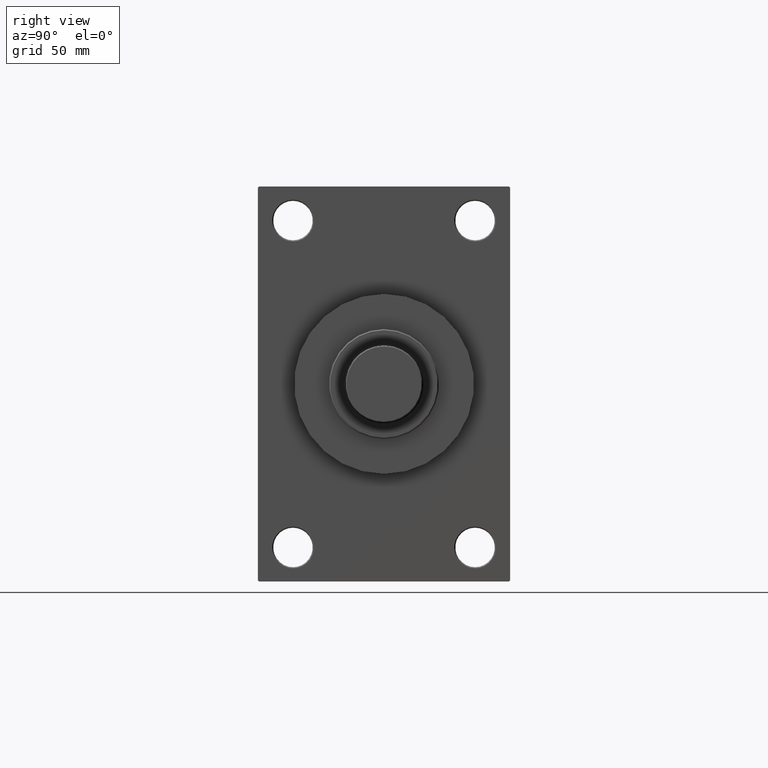
[diagram: clean part render]
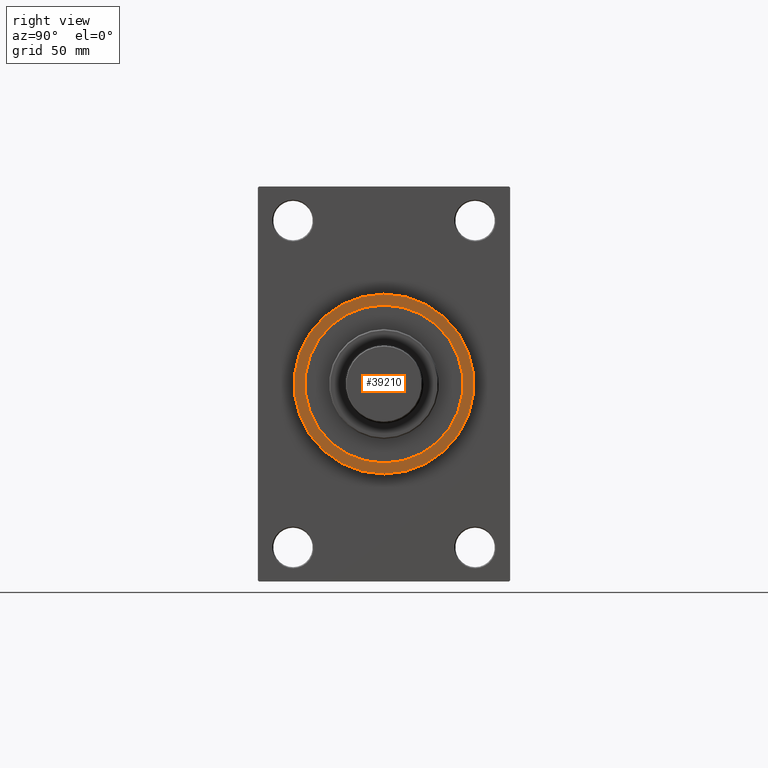
[diagram: same view with one face highlighted and labeled with its STEP entity id]
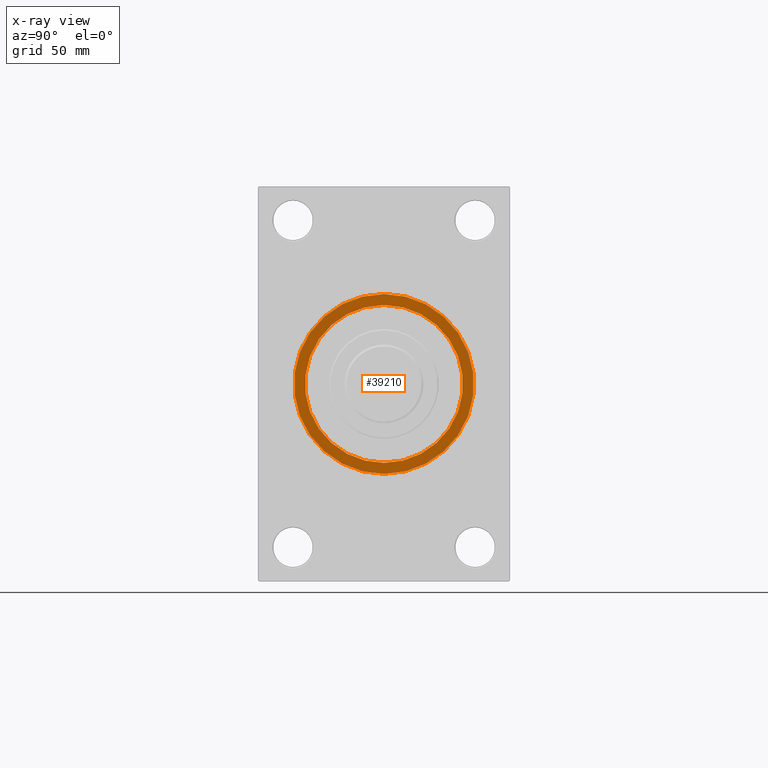
[diagram: x-ray of the same camera — body ghosted, the highlighted face saturated]
A machine part, right view. The second image highlights one B-rep face of the part: STEP entity #39210.
The next image is the same camera in x-ray: the body ghosted, the highlighted face saturated — about 0% of this face is hidden behind the body in this view.
In plain terms, the highlighted planar face has unit normal (1, 0, 0).
Its self-contained STEP definition (entity closure, byte-faithful):
#573 = DIRECTION ( 'NONE',  ( 0.000000000000000000, 0.000000000000000000, -1.000000000000000000 ) ) ;
#907 = ORIENTED_EDGE ( 'NONE', *, *, #32788, .T. ) ;
#1078 = CARTESIAN_POINT ( 'NONE',  ( 169.0000000000000000, 0.000000000000000000, 41.00000000000000000 ) ) ;
#2125 = AXIS2_PLACEMENT_3D ( 'NONE', #43906, #36137, #32721 ) ;
#3999 = EDGE_CURVE ( 'NONE', #27037, #19309, #24174, .T. ) ;
#5461 = CARTESIAN_POINT ( 'NONE',  ( 169.0000000000000000, 4.408728476930470856E-15, 36.00000000000000000 ) ) ;
#7342 = CIRCLE ( 'NONE', #26794, 41.00000000000000000 ) ;
#7762 = DIRECTION ( 'NONE',  ( 0.000000000000000000, 0.000000000000000000, -1.000000000000000000 ) ) ;
#9691 = AXIS2_PLACEMENT_3D ( 'NONE', #12135, #27003, #7762 ) ;
#12135 = CARTESIAN_POINT ( 'NONE',  ( 169.0000000000000000, 0.000000000000000000, 0.000000000000000000 ) ) ;
#13730 = FACE_OUTER_BOUND ( 'NONE', #16304, .T. ) ;
#14214 = PLANE ( 'NONE',  #2125 ) ;
#14228 = VERTEX_POINT ( 'NONE', #1078 ) ;
#15357 = ORIENTED_EDGE ( 'NONE', *, *, #32677, .F. ) ;
#15789 = CARTESIAN_POINT ( 'NONE',  ( 169.0000000000000000, 0.000000000000000000, 0.000000000000000000 ) ) ;
#16027 = DIRECTION ( 'NONE',  ( 1.000000000000000000, 0.000000000000000000, 0.000000000000000000 ) ) ;
#16304 = EDGE_LOOP ( 'NONE', ( #907, #23603 ) ) ;
#18248 = CIRCLE ( 'NONE', #9691, 36.00000000000000000 ) ;
#19309 = VERTEX_POINT ( 'NONE', #44011 ) ;
#20512 = EDGE_LOOP ( 'NONE', ( #15357, #26021 ) ) ;
#20654 = DIRECTION ( 'NONE',  ( 0.000000000000000000, 0.000000000000000000, -1.000000000000000000 ) ) ;
#23603 = ORIENTED_EDGE ( 'NONE', *, *, #32295, .T. ) ;
#24174 = CIRCLE ( 'NONE', #38937, 36.00000000000000000 ) ;
#26021 = ORIENTED_EDGE ( 'NONE', *, *, #3999, .F. ) ;
#26794 = AXIS2_PLACEMENT_3D ( 'NONE', #37833, #41002, #573 ) ;
#27003 = DIRECTION ( 'NONE',  ( 1.000000000000000000, 0.000000000000000000, 0.000000000000000000 ) ) ;
#27037 = VERTEX_POINT ( 'NONE', #5461 ) ;
#32295 = EDGE_CURVE ( 'NONE', #43511, #14228, #7342, .T. ) ;
#32677 = EDGE_CURVE ( 'NONE', #19309, #27037, #18248, .T. ) ;
#32721 = DIRECTION ( 'NONE',  ( 0.000000000000000000, 0.000000000000000000, -1.000000000000000000 ) ) ;
#32788 = EDGE_CURVE ( 'NONE', #14228, #43511, #36152, .T. ) ;
#33399 = CARTESIAN_POINT ( 'NONE',  ( 169.0000000000000000, 5.021051876504148963E-15, -41.00000000000000000 ) ) ;
#36137 = DIRECTION ( 'NONE',  ( 1.000000000000000000, 0.000000000000000000, 0.000000000000000000 ) ) ;
#36152 = CIRCLE ( 'NONE', #36907, 41.00000000000000000 ) ;
#36907 = AXIS2_PLACEMENT_3D ( 'NONE', #42813, #39163, #20654 ) ;
#37833 = CARTESIAN_POINT ( 'NONE',  ( 169.0000000000000000, 0.000000000000000000, 0.000000000000000000 ) ) ;
#38937 = AXIS2_PLACEMENT_3D ( 'NONE', #15789, #16027, #45234 ) ;
#39163 = DIRECTION ( 'NONE',  ( 1.000000000000000000, 0.000000000000000000, 0.000000000000000000 ) ) ;
#39210 = ADVANCED_FACE ( 'NONE', ( #40271, #13730 ), #14214, .T. ) ;
#40271 = FACE_BOUND ( 'NONE', #20512, .T. ) ;
#41002 = DIRECTION ( 'NONE',  ( 1.000000000000000000, 0.000000000000000000, 0.000000000000000000 ) ) ;
#42813 = CARTESIAN_POINT ( 'NONE',  ( 169.0000000000000000, 0.000000000000000000, 0.000000000000000000 ) ) ;
#43511 = VERTEX_POINT ( 'NONE', #33399 ) ;
#43906 = CARTESIAN_POINT ( 'NONE',  ( 169.0000000000000000, 0.000000000000000000, 0.000000000000000000 ) ) ;
#44011 = CARTESIAN_POINT ( 'NONE',  ( 169.0000000000000000, 0.000000000000000000, -36.00000000000000000 ) ) ;
#45234 = DIRECTION ( 'NONE',  ( 0.000000000000000000, 0.000000000000000000, -1.000000000000000000 ) ) ;